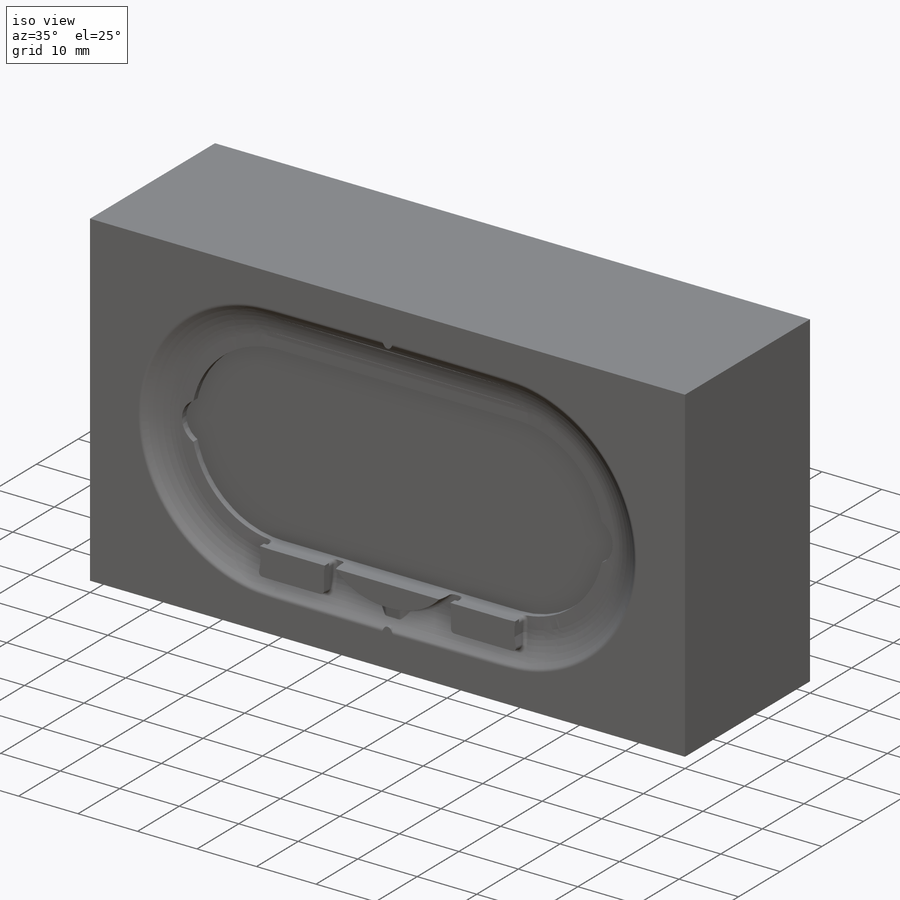
[diagram: iso view]
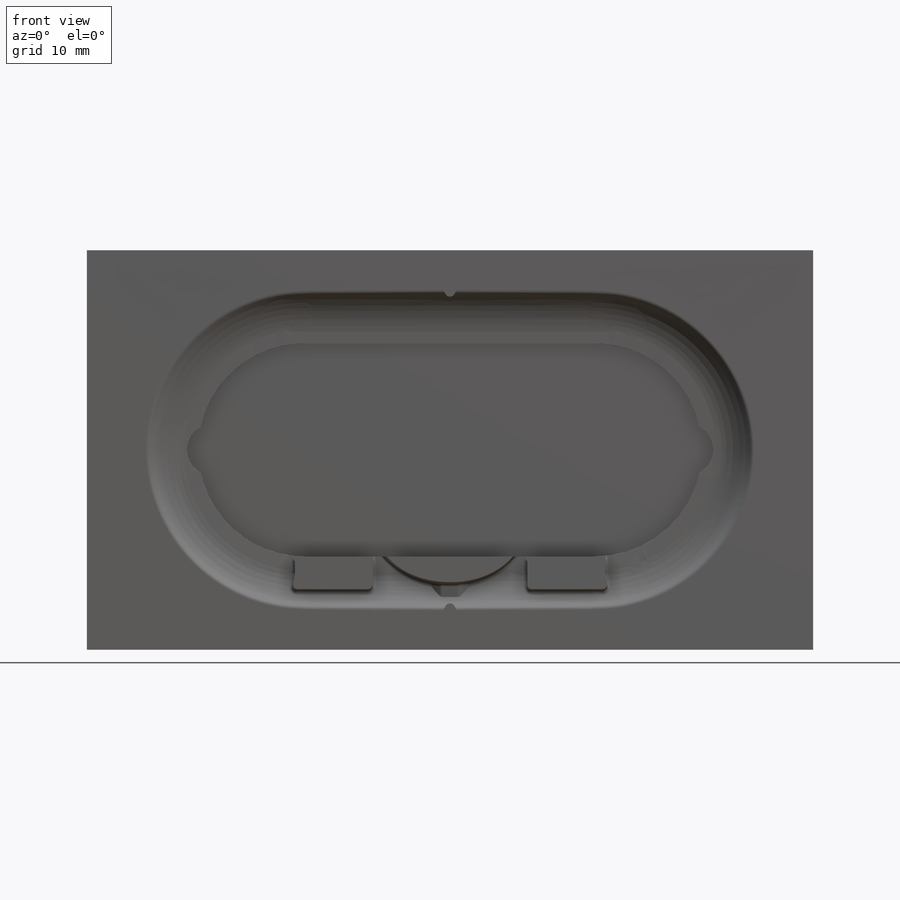
[diagram: front view]
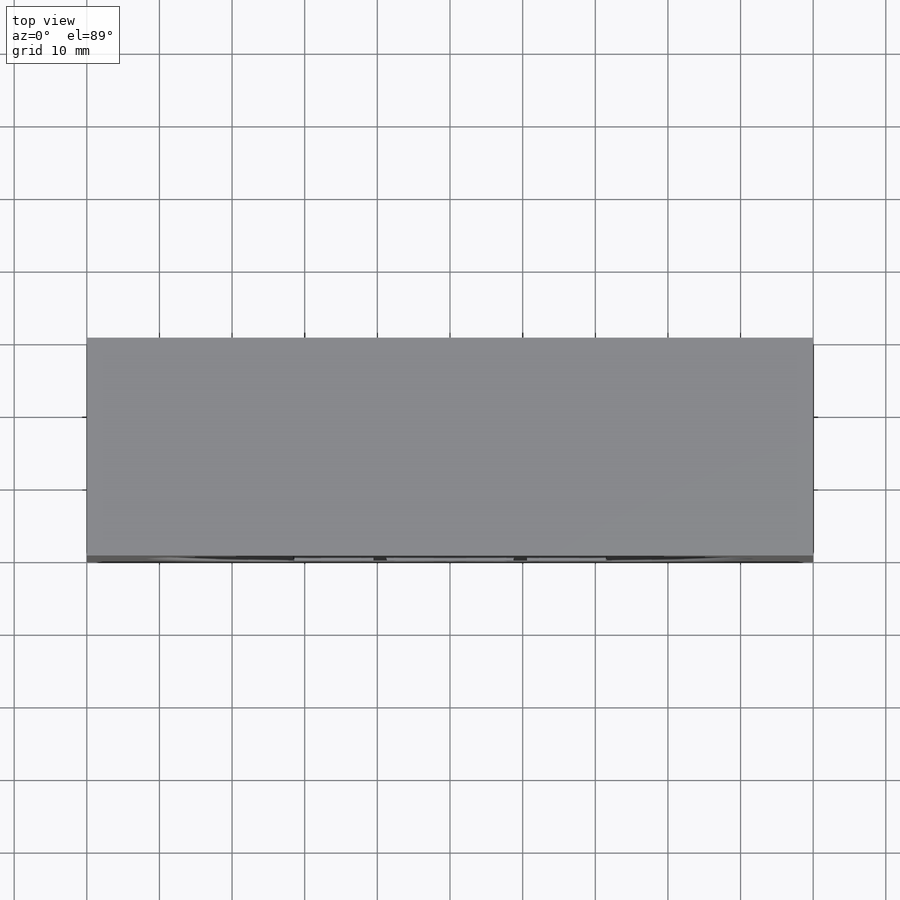
[diagram: top view]
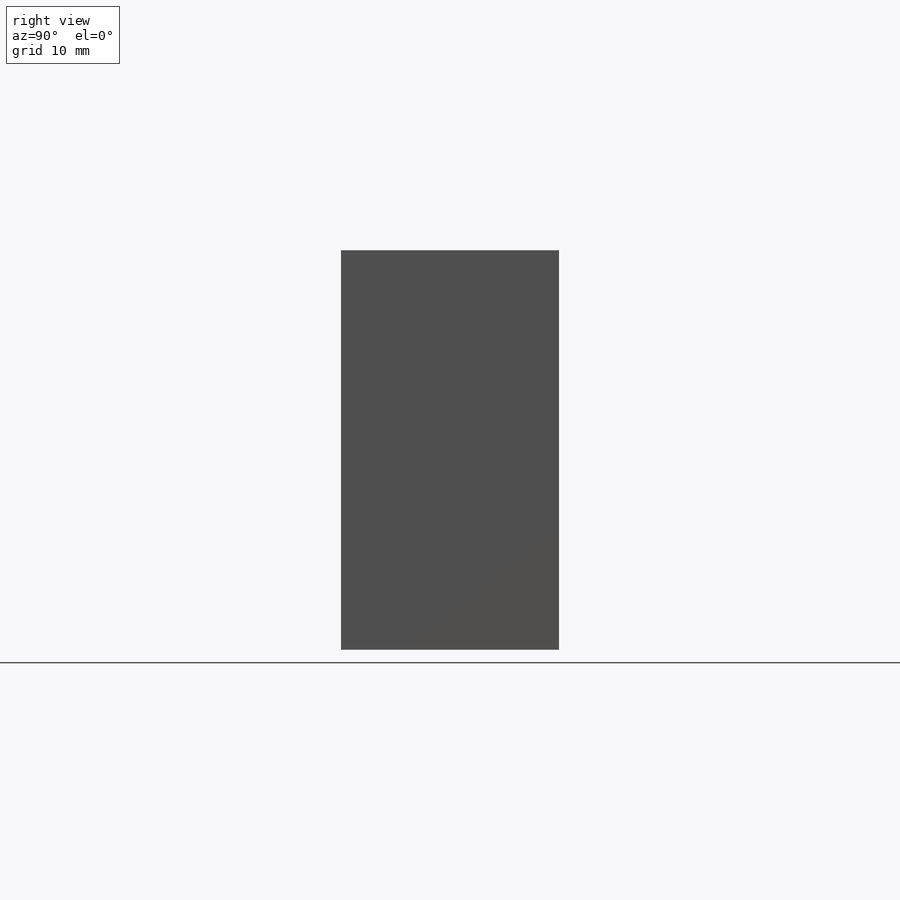
[diagram: right view]
SOLIDWORKS PART (.sldprt)
format: sldprt  version: not decoded by parser v0  size: 6,144,512 bytes
history: native  units: mm
features: sketch x8, plane x3, extrude x3, cut_extrude x3, material x1 (+8 scaffold rows collapsed)
feature tree (26):
  scaffold x8  (default folders/planes/origin — collapsed)
  material  "Material <nicht festgelegt>"
  plane  "Plane1 x-y"
  plane  "Plane2 x-z"
  plane  "Plane3 y-z"
  sketch  "Skizze1"  dims[c1.D1=~29.806381mm c2.D1=100.0mm c2.D2=55.0mm c2.D3=30.0mm]
  extrude  "Linear austragen1"  Depth=30mm
  extrude  "zwei"  [1 undecoded]
  sketch  "Skizze30"  dims[c1.D1=1.0mm c1.D2=1.0mm c1.D3=~14.659514mm c2.D1=12.5mm c2.D2=6.25mm c2.D3=43.15mm c2.D4=~27.50019mm c2.D5=~27.49981mm c2.D6=98.0mm c3.D1=~14.536608mm]
  cut_extrude  "Schnitt-Linear austragen6"  [1 undecoded]
  sketch  "Skizze37"  dims[D1=0.0mm]
  cut_extrude  "Schnitt-Linear austragen10"  [1 undecoded]
  sketch  "Skizze39"
  cut_extrude  "Schnitt-Linear austragen12"  [1 undecoded]
  sketch  "3D-Skizze2"
  sketch  "3D-Skizze3"
  sketch  "3D-Skizze5"
  sketch  "Skizze40"  dims[D1=0.0mm]
  extrude  "Aufsatz-Linear austragen1"  Depth=1mm
decode coverage: 6 of 14 modeling features carry decoded parameters
note: ~ marks probable driven/reference dimensions
note: 4 parameter values undecoded
summary: no parameter record found for 4 features
note: suppression state not decoded; provenance and decode notes live in map.json
